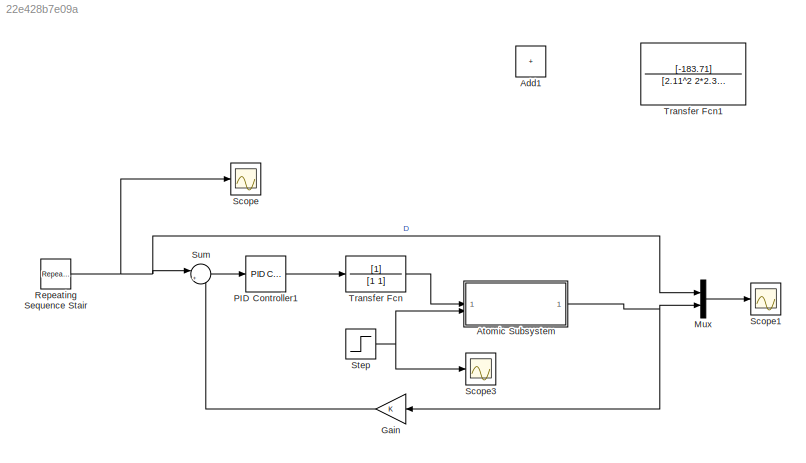
MODEL slx_22e428b7e09a
KIND model
CONFIG AbsTol = auto
CONFIG EnableMultiTasking = off
CONFIG FixedStep = auto
CONFIG MaxStep = auto
CONFIG MinStep = auto
CONFIG RelTol = 1e-3
CONFIG SampleTimeConstraint = Unconstrained
CONFIG SolverName = VariableStepAuto
CONFIG StartTime = 0.0
CONFIG StopTime = 2500
BLOCK [Sum] Add1
  IconShape = rectangular
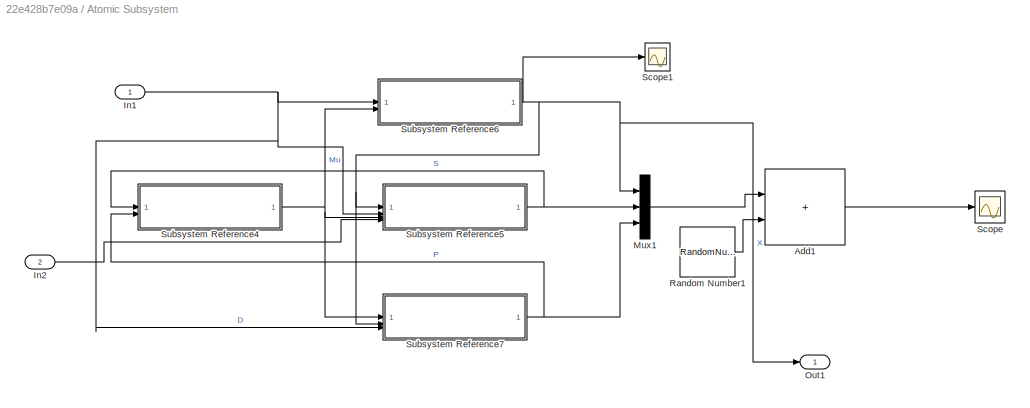
BLOCK [SubSystem] Atomic Subsystem
  TreatAsAtomicUnit = on
BLOCK [Sum] Atomic Subsystem/Add1
  IconShape = rectangular
BLOCK [Inport] Atomic Subsystem/In1
BLOCK [Inport] Atomic Subsystem/In2
  Port = 2
BLOCK [Mux] Atomic Subsystem/Mux1
  DisplayOption = bar
  Inputs = 3
BLOCK [Outport] Atomic Subsystem/Out1
BLOCK [RandomNumber] Atomic Subsystem/Random Number1
  SampleTime = 0.1
  Variance = 0.01
BLOCK [Scope] Atomic Subsystem/Scope
  ActiveDisplayYMaximum = 28688.615167165182
  ActiveDisplayYMinimum = -9798.9196176080059
  DataLoggingVariableName = ScopeData6
  Floating = off
  GraphicalSettings = {"AxesScalingProperties":{"AlignXAxis":"Center","AlignYAxis":"Center","AutoScaleXAxisLimits":false,"AxesScaling":"Manual","AxesScalingNumUpdates":10,"ExpandOnly":true,"ScaleAxesLimitsAtStop":false,"XAxisDataRange":100,"YAxisDataRange":80},"DisplayProperties":{"ColorOrder":["auto","auto","auto","auto","auto","auto","auto","auto","auto","auto","auto","auto","auto","auto","auto","auto","auto","auto",...<+2215ch>
  MultipleDisplayCache = [{"MaxYLimMag":18689.882273913605,"MaxYLimReal":28688.615167165182,"MinYLimMag":0,"MinYLimReal":-9798.9196176080059,"PlotAsMagnitudePhase":false,"ShowGrid":true,"ShowLegend":false,"Title":"%<SignalLabel>","YLabel":""}]
  NumInputPorts = 1
  ScopeFrameLocation = window
  WasSavedAsWebScope = on
  WindowPosition = [488.000000,222.000000,560.000000,420.000000,]
BLOCK [Scope] Atomic Subsystem/Scope1
  ActiveDisplayYMaximum = 1
  ActiveDisplayYMinimum = -1
  DataLoggingVariableName = ScopeData7
  Floating = off
  GraphicalSettings = {"Style":{"BackgroundColor":[0.12941176470588237,0.12941176470588237,0.12941176470588237],"AxesColor":[0.07058823529411765,0.07058823529411765,0.07058823529411765],"LabelsColor":[0.8509803921568627,0.8509803921568627,0.8509803921568627],"PreserveColors":false,"Visible":[true],"LineStyle":["-"],"LineWidth":[1.5],"BarWidth":[0.9],"LineColor":["auto"],"LineFaceAlpha":[1],"LineEdgeAlpha":[1],"Marker":...<+1867ch>
  MultipleDisplayCache = [{"MaxYLimMag":1,"MaxYLimReal":1,"MinYLimMag":0,"MinYLimReal":-1,"PlotAsMagnitudePhase":false,"ShowGrid":true,"ShowLegend":false,"Title":"%<SignalLabel>","YLabel":""}]
  NumInputPorts = 1
  ScopeFrameLocation = window
  WasSavedAsWebScope = on
  WindowPosition = [488.000000,222.000000,560.000000,420.000000,]
BLOCK [SubSystem] Atomic Subsystem/Subsystem Reference4
  ReferencedSubsystem = Mu_SP_oldversion
BLOCK [SubSystem] Atomic Subsystem/Subsystem Reference5
  ReferencedSubsystem = Substrate_oldVersion
BLOCK [SubSystem] Atomic Subsystem/Subsystem Reference6
  ReferencedSubsystem = Biomass_X_oldversion
BLOCK [SubSystem] Atomic Subsystem/Subsystem Reference7
  ReferencedSubsystem = Product_P_oldversion
BLOCK [Gain] Gain
  NameLocation = top
BLOCK [Mux] Mux
  DisplayOption = bar
  Inputs = 2
BLOCK [Reference] PID Controller1  REF=slpidlib/PID Controller
  LibrarySourceBlock = simulink/Continuous/PID Controller
  SourceBlock = slpidlib/PID Controller
  SourceType = PID 1dof
BLOCK [Reference] Repeating Sequence Stair  REF=simulink/Sources/Repeating
Sequence
Stair
  SourceBlock = simulink/Sources/Repeating\nSequence\nStair
  SourceType = Repeating Sequence Stair
BLOCK [Scope] Scope
  ActiveDisplayYMaximum = 1
  ActiveDisplayYMinimum = -1
  Floating = off
  GraphicalSettings = {"Style":{"BackgroundColor":[0.12941176470588237,0.12941176470588237,0.12941176470588237],"AxesColor":[0.07058823529411765,0.07058823529411765,0.07058823529411765],"LabelsColor":[0.8509803921568627,0.8509803921568627,0.8509803921568627],"PreserveColors":false,"Visible":[true],"LineStyle":["-"],"LineWidth":[1.5],"BarWidth":[0.9],"LineColor":["auto"],"LineFaceAlpha":[1],"LineEdgeAlpha":[1],"Marker":...<+1867ch>
  MultipleDisplayCache = [{"MaxYLimMag":1,"MaxYLimReal":1,"MinYLimMag":0,"MinYLimReal":-1,"PlotAsMagnitudePhase":false,"ShowGrid":true,"ShowLegend":false,"Title":"%<SignalLabel>","YLabel":""}]
  NumInputPorts = 1
  ScopeFrameLocation = window
  WasSavedAsWebScope = on
  WindowPosition = [488.000000,222.000000,560.000000,420.000000,]
BLOCK [Scope] Scope1
  ActiveDisplayYMaximum = 29.415437834867905
  ActiveDisplayYMinimum = -3.1572708705408776
  DataLoggingVariableName = ScopeData1
  Floating = off
  GraphicalSettings = {"Style":{"BackgroundColor":[0.12941176470588237,0.12941176470588237,0.12941176470588237],"AxesColor":[0.07058823529411765,0.07058823529411765,0.07058823529411765],"LabelsColor":[0.8509803921568627,0.8509803921568627,0.8509803921568627],"PreserveColors":false,"Visible":[true,true],"LineStyle":["-","-"],"LineWidth":[1.5,1.5],"BarWidth":[0.9,0.9],"LineColor":["auto","auto"],"LineFaceAlpha":[1,1],"Li...<+2103ch>
  MultipleDisplayCache = [{"MaxYLimMag":29.415437834867905,"MaxYLimReal":29.415437834867905,"MinYLimMag":0,"MinYLimReal":-3.1572708705408776,"PlotAsMagnitudePhase":false,"ShowGrid":true,"ShowLegend":false,"Title":"%<SignalLabel>","YLabel":""}]
  NumInputPorts = 1
  ScopeFrameLocation = window
  Visible = on
  WasSavedAsWebScope = on
  WindowPosition = [1.000000,1.000000,1536.000000,840.000000,]
BLOCK [Scope] Scope3
  ActiveDisplayYMaximum = 1
  ActiveDisplayYMinimum = -1
  DataLoggingVariableName = ScopeData9
  Floating = off
  GraphicalSettings = {"Style":{"BackgroundColor":[0.12941176470588237,0.12941176470588237,0.12941176470588237],"AxesColor":[0.07058823529411765,0.07058823529411765,0.07058823529411765],"LabelsColor":[0.8509803921568627,0.8509803921568627,0.8509803921568627],"PreserveColors":false,"Visible":[true],"LineStyle":["-"],"LineWidth":[1.5],"BarWidth":[0.9],"LineColor":["auto"],"LineFaceAlpha":[1],"LineEdgeAlpha":[1],"Marker":...<+1873ch>
  MultipleDisplayCache = [{"MaxYLimMag":1,"MaxYLimReal":1,"MinYLimMag":0,"MinYLimReal":-1,"PlotAsMagnitudePhase":false,"ShowGrid":true,"ShowLegend":false,"Title":"%<SignalLabel>","YLabel":""}]
  NumInputPorts = 1
  ScopeFrameLocation = window
  WasSavedAsWebScope = on
  WindowPosition = [1.000000,1.000000,1536.000000,840.000000,]
BLOCK [Step] Step
  After = 19.999
  SampleTime = 0
BLOCK [Sum] Sum
  Inputs = |+-
BLOCK [TransferFcn] Transfer Fcn
  Denominator = [1 1]
BLOCK [TransferFcn] Transfer Fcn1
  Denominator = [2.11^2 2*2.37*2.11 1]
  Numerator = [-183.71]
LINE Atomic Subsystem/Add1:1 -> Atomic Subsystem/Scope:1
NET Atomic Subsystem/In1:1 -> Atomic Subsystem/Subsystem Reference5:2, Atomic Subsystem/Subsystem Reference6:1, Atomic Subsystem/Subsystem Reference7:3
LINE Atomic Subsystem/In2:1 -> Atomic Subsystem/Subsystem Reference5:4
LINE Atomic Subsystem/Mux1:1 -> Atomic Subsystem/Add1:1
LINE Atomic Subsystem/Random Number1:1 -> Atomic Subsystem/Add1:2
NET Atomic Subsystem/Subsystem Reference4:1 -> Atomic Subsystem/Subsystem Reference5:3, Atomic Subsystem/Subsystem Reference6:2, Atomic Subsystem/Subsystem Reference7:1
NET Atomic Subsystem/Subsystem Reference5:1 -> Atomic Subsystem/Mux1:2, Atomic Subsystem/Subsystem Reference4:1
NET Atomic Subsystem/Subsystem Reference6:1 -> Atomic Subsystem/Mux1:1, Atomic Subsystem/Out1:1, Atomic Subsystem/Scope1:1, Atomic Subsystem/Subsystem Reference5:1, Atomic Subsystem/Subsystem Reference7:2
NET Atomic Subsystem/Subsystem Reference7:1 -> Atomic Subsystem/Mux1:3, Atomic Subsystem/Subsystem Reference4:2
NET Atomic Subsystem:1 -> Gain:1, Mux:2
LINE Gain:1 -> Sum:2
LINE Mux:1 -> Scope1:1
LINE PID Controller1:1 -> Transfer Fcn:1
NET Repeating Sequence Stair:1 -> Mux:1, Scope:1, Sum:1
NET Step:1 -> Atomic Subsystem:2, Scope3:1
LINE Sum:1 -> PID Controller1:1
LINE Transfer Fcn:1 -> Atomic Subsystem:1
note: NET lines group one-source signal fan-out (src -> all destinations, sorted); 1:1 wires keep LINE
